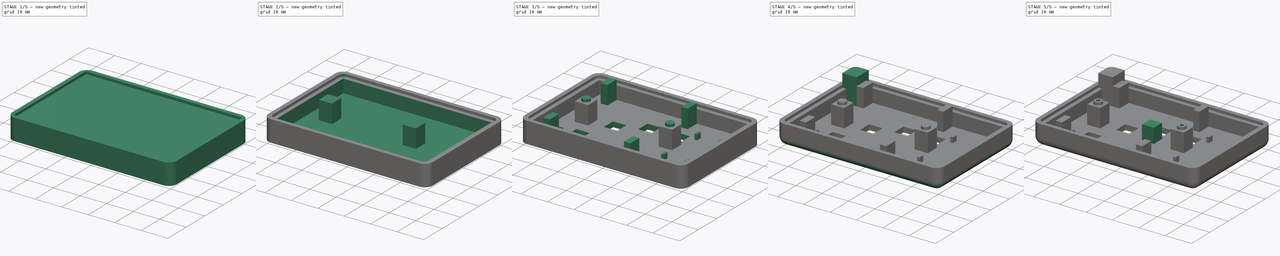
[diagram: build sequence overview — one tinted view per stage of 5, left to right]
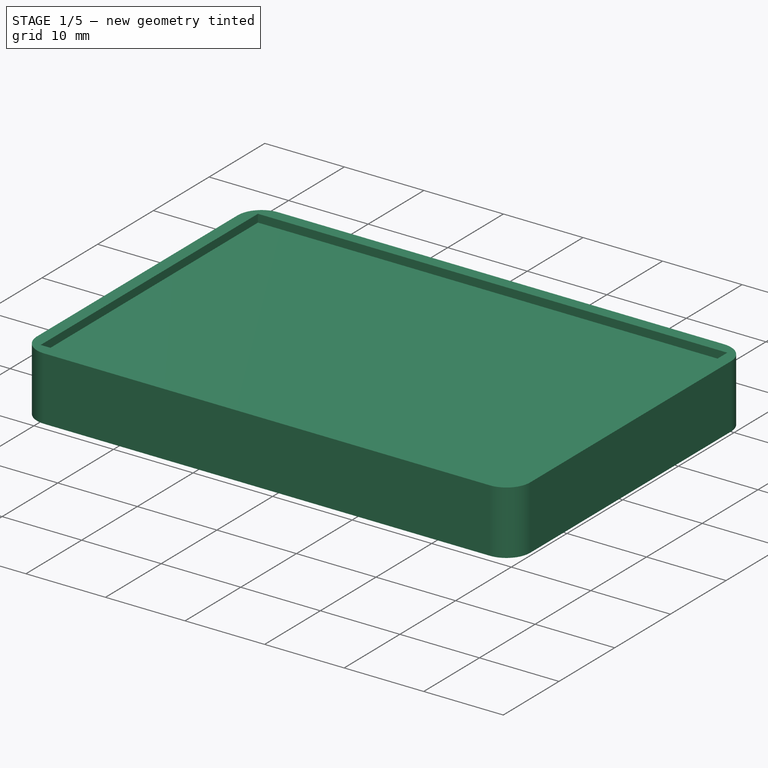
[diagram: stage 1 of 5 — iso view after this stage's code; geometry added in this stage tinted green]
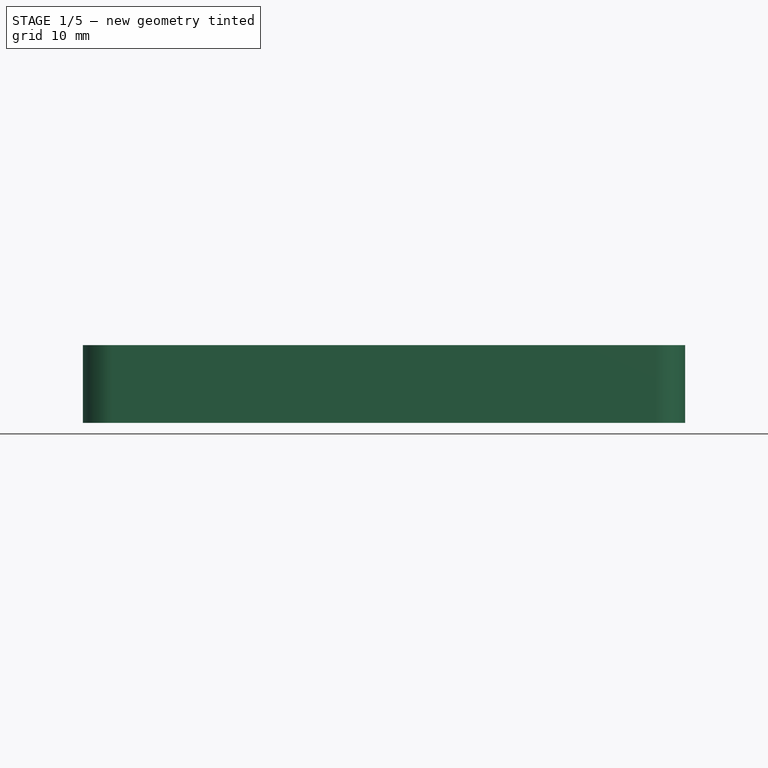
[diagram: stage 1 of 5 — front view after this stage's code; geometry added in this stage tinted green]
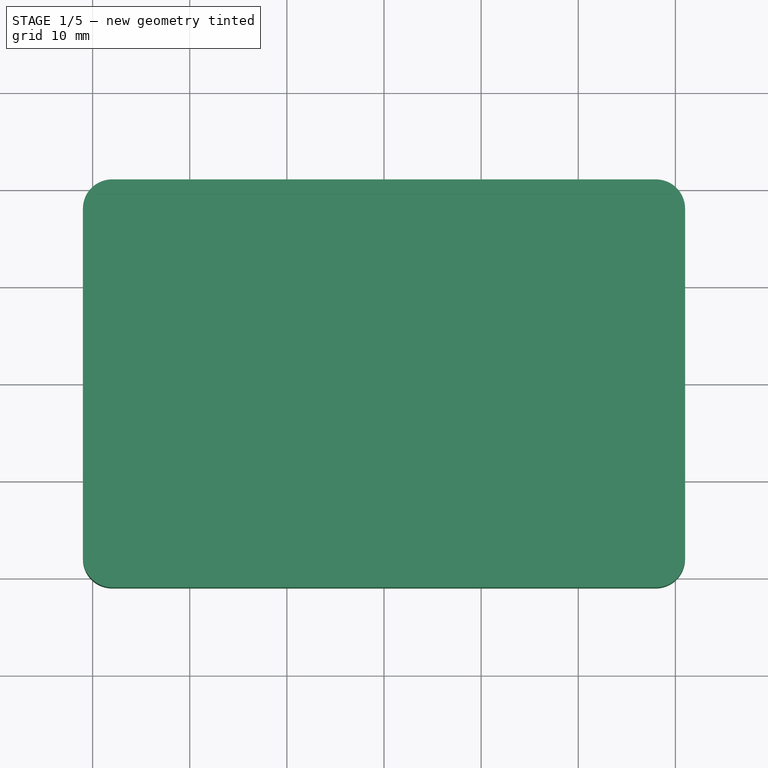
[diagram: stage 1 of 5 — top view after this stage's code; geometry added in this stage tinted green]
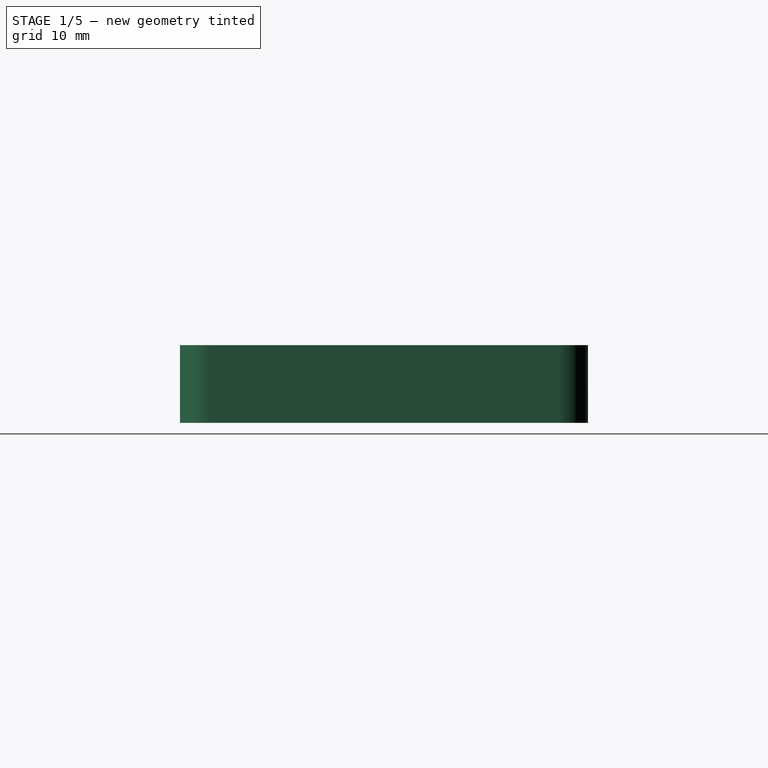
[diagram: stage 1 of 5 — right view after this stage's code; geometry added in this stage tinted green]
FCSTD DOCUMENT  (FreeCAD 0.21R33668 +26 (Git))
Label: pult02
License: All rights reserved
LicenseURL: http://en.wikipedia.org/wiki/All_rights_reserved
objects: Sketcher::SketchObject×11, PartDesign::Pad×8, PartDesign::Fillet×4, PartDesign::Pocket×3, PartDesign::Body×2, PartDesign::Hole×1
note: 45 computed .brp shape members not serialized (recipe doc carries the construction recipe); baked Part::Feature solids carry a one-line shape summary decoded from their .brp

FEATURE [Sketcher::SketchObject] Sketch
  FullyConstrained = true
  MapMode = 5
  Support = -> [XY_Plane]
  sketch-geometry (5):
    g0: LineSegment StartX=-31 StartY=21 StartZ=0 EndX=-31 EndY=-21 EndZ=0
    g1: LineSegment StartX=-31 StartY=-21 StartZ=0 EndX=31 EndY=-21 EndZ=0
    g2: LineSegment StartX=31 StartY=-21 StartZ=0 EndX=31 EndY=21 EndZ=0
    g3: LineSegment StartX=31 StartY=21 StartZ=0 EndX=-31 EndY=21 EndZ=0
    g4: GeomPoint X=0 Y=0 Z=0
  constraints (12):
    c: Coincident(g0,g1)
    c: Coincident(g1,g2)
    c: Coincident(g2,g3)
    c: Coincident(g3,g0)
    c: Horizontal(g1)
    c: Horizontal(g3)
    c: Vertical(g0)
    c: Vertical(g2)
    c: Symmetric(g1,g0,g4)
    c: Coincident(g4,g-1)
    c: DistanceY(g2,g2) = 42
    c: DistanceX(g3,g3) = 62
FEATURE [PartDesign::Pad] Pad
  Direction = (0,0,1)
  Length = 8
  Length2 = 10
  Profile = -> Sketch
  ReferenceAxis = -> Sketch [N_Axis]
  Type = 0
FEATURE [PartDesign::Fillet] Fillet
  Base = -> Pad [Edge5,Edge8,Edge1,Edge2]
  BaseFeature = -> Pad
  Radius = 3
  SupportTransform = false
  UseAllEdges = false
FEATURE [Sketcher::SketchObject] Sketch001
  FullyConstrained = true
  MapMode = 5
  Placement = pos=(0,0,8) rot=(0,0,1;0rad)
  Support = -> [Fillet]
  sketch-geometry (5):
    g0: LineSegment StartX=-29.5 StartY=19.5 StartZ=0 EndX=-29.5 EndY=-19.5 EndZ=0
    g1: LineSegment StartX=-29.5 StartY=-19.5 StartZ=0 EndX=29.5 EndY=-19.5 EndZ=0
    g2: LineSegment StartX=29.5 StartY=-19.5 StartZ=0 EndX=29.5 EndY=19.5 EndZ=0
    g3: LineSegment StartX=29.5 StartY=19.5 StartZ=0 EndX=-29.5 EndY=19.5 EndZ=0
    g4: GeomPoint X=0 Y=0 Z=0
  constraints (12):
    c: Coincident(g0,g1)
    c: Coincident(g1,g2)
    c: Coincident(g2,g3)
    c: Coincident(g3,g0)
    c: Horizontal(g1)
    c: Horizontal(g3)
    c: Vertical(g0)
    c: Vertical(g2)
    c: Symmetric(g1,g0,g4)
    c: Coincident(g4,g-1)
    c: DistanceX(g3,g3) = 59
    c: DistanceY(g2,g2) = 39
FEATURE [PartDesign::Pocket] Pocket
  BaseFeature = -> Fillet
  Direction = (0,0,-1)
  Length = 1
  Length2 = 5
  Profile = -> Sketch001
  ReferenceAxis = -> Sketch001 [N_Axis]
  Type = 0
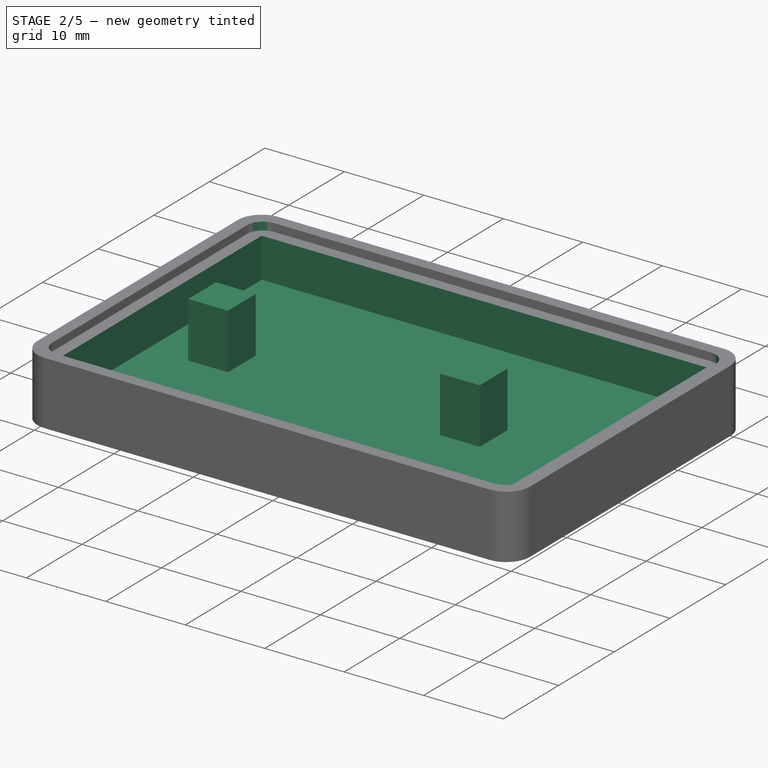
[diagram: stage 2 of 5 — iso view after this stage's code; geometry added in this stage tinted green]
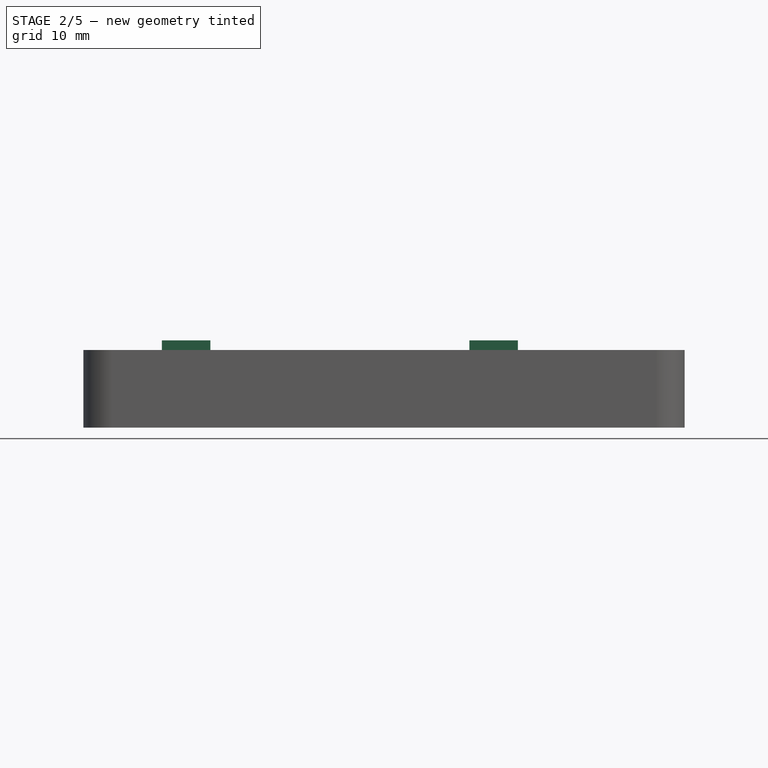
[diagram: stage 2 of 5 — front view after this stage's code; geometry added in this stage tinted green]
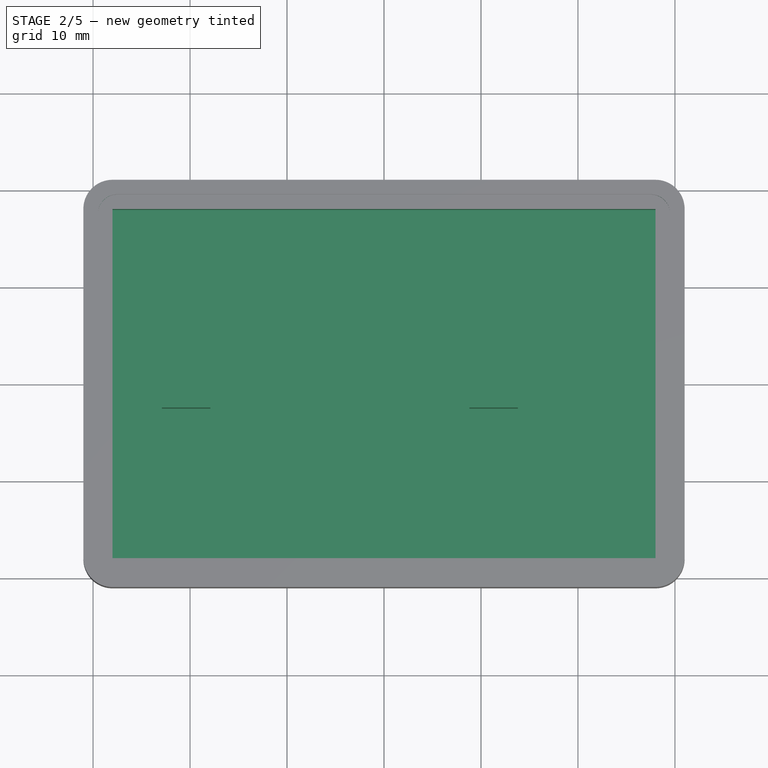
[diagram: stage 2 of 5 — top view after this stage's code; geometry added in this stage tinted green]
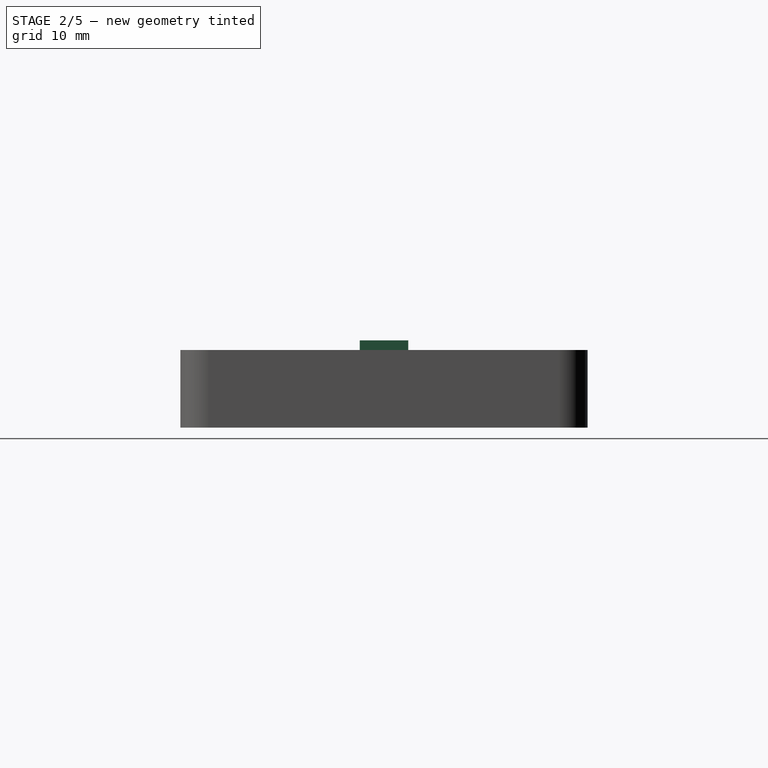
[diagram: stage 2 of 5 — right view after this stage's code; geometry added in this stage tinted green]
FEATURE [PartDesign::Fillet] Fillet001
  Base = -> Pocket [Edge34,Edge29,Edge30,Edge32]
  BaseFeature = -> Pocket
  Radius = 2
  SupportTransform = false
  UseAllEdges = false
FEATURE [Sketcher::SketchObject] Sketch002  label="uglublenie"
  FullyConstrained = true
  MapMode = 5
  Placement = pos=(0,0,7) rot=(0,0,1;0rad)
  Support = -> [Fillet001]
  sketch-geometry (5):
    g0: LineSegment StartX=-28 StartY=18 StartZ=0 EndX=-28 EndY=-18 EndZ=0
    g1: LineSegment StartX=-28 StartY=-18 StartZ=0 EndX=28 EndY=-18 EndZ=0
    g2: LineSegment StartX=28 StartY=-18 StartZ=0 EndX=28 EndY=18 EndZ=0
    g3: LineSegment StartX=28 StartY=18 StartZ=0 EndX=-28 EndY=18 EndZ=0
    g4: GeomPoint X=0 Y=0 Z=0
  constraints (12):
    c: Coincident(g0,g1)
    c: Coincident(g1,g2)
    c: Coincident(g2,g3)
    c: Coincident(g3,g0)
    c: Horizontal(g1)
    c: Horizontal(g3)
    c: Vertical(g0)
    c: Vertical(g2)
    c: Symmetric(g1,g0,g4)
    c: Coincident(g4,g-1)
    c: DistanceX(g3,g3) = 56
    c: DistanceY(g2,g2) = 36
FEATURE [PartDesign::Pocket] Pocket001
  BaseFeature = -> Fillet001
  Direction = (0,0,-1)
  Length = 5
  Length2 = 5
  Profile = -> Sketch002
  ReferenceAxis = -> Sketch002 [N_Axis]
  Type = 0
FEATURE [Sketcher::SketchObject] Sketch003  label="main stoyka for plate"
  FullyConstrained = true
  MapMode = 5
  Placement = pos=(0,0,2) rot=(0,0,1;0rad)
  Support = -> [Pocket001]
  sketch-geometry (10):
    g0: LineSegment StartX=-22.9 StartY=2.5 StartZ=0 EndX=-22.9 EndY=-2.5 EndZ=0
    g1: LineSegment StartX=-22.9 StartY=-2.5 StartZ=0 EndX=-17.9 EndY=-2.5 EndZ=0
    g2: LineSegment StartX=-17.9 StartY=-2.5 StartZ=0 EndX=-17.9 EndY=2.5 EndZ=0
    g3: LineSegment StartX=-17.9 StartY=2.5 StartZ=0 EndX=-22.9 EndY=2.5 EndZ=0
    g4: GeomPoint X=-20.4 Y=0 Z=0
    g5: LineSegment StartX=8.8 StartY=2.5 StartZ=0 EndX=8.8 EndY=-2.5 EndZ=0
    g6: LineSegment StartX=8.8 StartY=-2.5 StartZ=0 EndX=13.8 EndY=-2.5 EndZ=0
    g7: LineSegment StartX=13.8 StartY=-2.5 StartZ=0 EndX=13.8 EndY=2.5 EndZ=0
    g8: LineSegment StartX=13.8 StartY=2.5 StartZ=0 EndX=8.8 EndY=2.5 EndZ=0
    g9: GeomPoint X=11.3 Y=0 Z=0
  constraints (26):
    c: Coincident(g0,g1)
    c: Coincident(g1,g2)
    c: Coincident(g2,g3)
    c: Coincident(g3,g0)
    c: Horizontal(g1)
    c: Horizontal(g3)
    c: Vertical(g0)
    c: Vertical(g2)
    c: Symmetric(g1,g0,g4)
    c: PointOnObject(g4,g-1)
    c: DistanceX(g3,g3) = 5
    c: Equal(g3,g2)
    c: Coincident(g5,g6)
    c: Coincident(g6,g7)
    c: Coincident(g7,g8)
    c: Coincident(g8,g5)
    c: Horizontal(g6)
    c: Horizontal(g8)
    c: Vertical(g5)
    c: Vertical(g7)
    c: Symmetric(g6,g5,g9)
    c: PointOnObject(g9,g-1)
    c: DistanceX(g8,g8) = 5
    c: DistanceY(g7,g7) = 5
    c: DistanceX(g4,g9) = 31.7
    c: DistanceX(g4,g-1) = 20.4
FEATURE [PartDesign::Pad] Pad001
  BaseFeature = -> Pocket001
  Direction = (0,0,1)
  Length = 7
  Length2 = 10
  Profile = -> Sketch003
  ReferenceAxis = -> Sketch003 [N_Axis]
  Type = 0
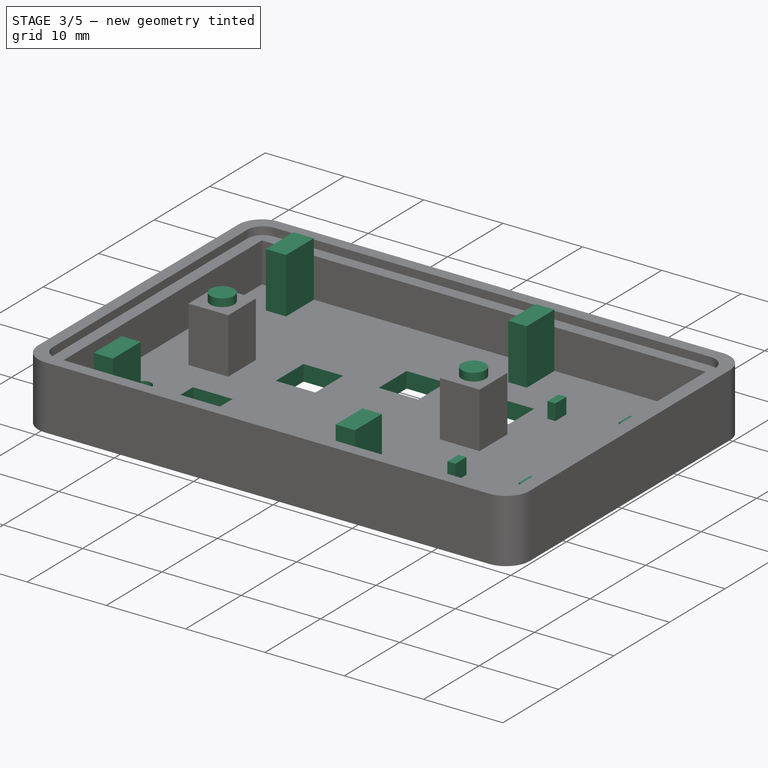
[diagram: stage 3 of 5 — iso view after this stage's code; geometry added in this stage tinted green]
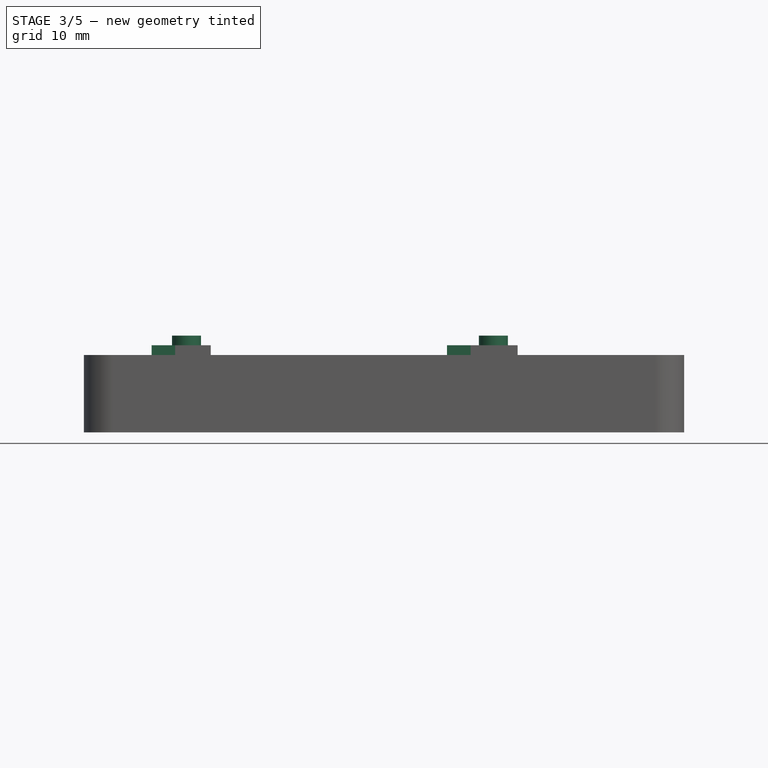
[diagram: stage 3 of 5 — front view after this stage's code; geometry added in this stage tinted green]
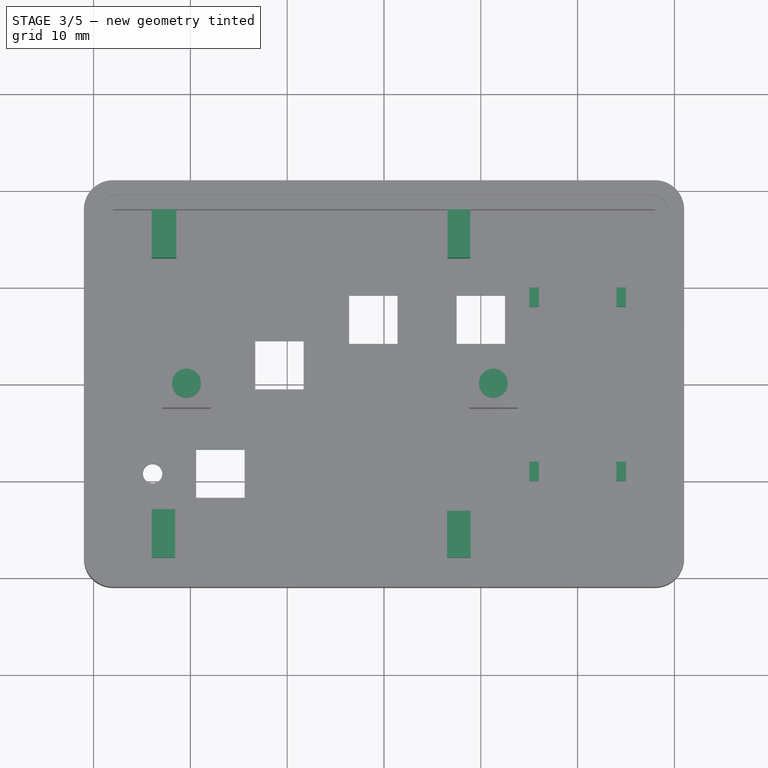
[diagram: stage 3 of 5 — top view after this stage's code; geometry added in this stage tinted green]
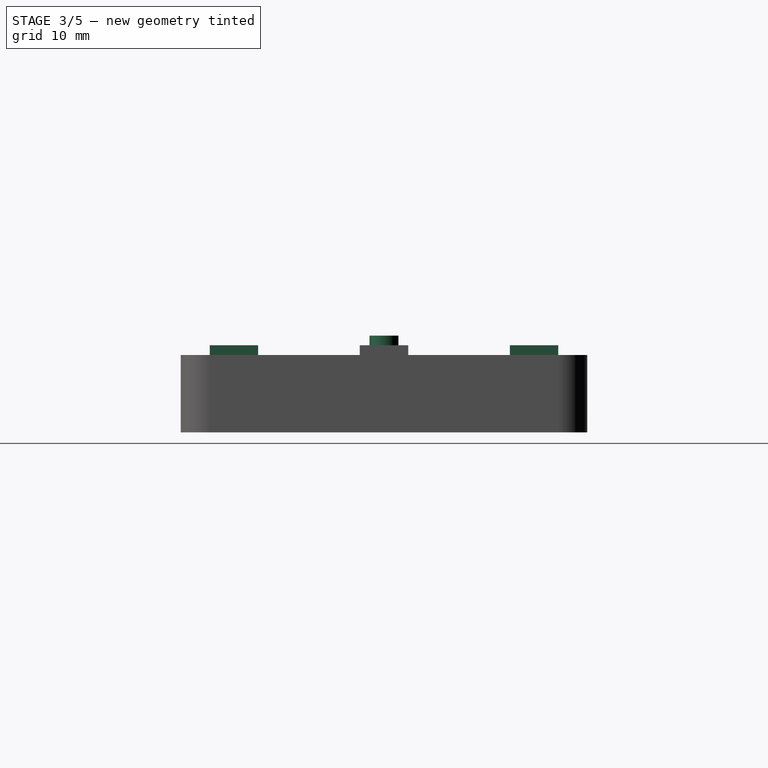
[diagram: stage 3 of 5 — right view after this stage's code; geometry added in this stage tinted green]
FEATURE [Sketcher::SketchObject] Sketch004  label="otv for plate"
  FullyConstrained = true
  MapMode = 5
  Placement = pos=(0,0,9) rot=(0,0,1;0rad)
  Support = -> [Pad001]
  sketch-geometry (2):
    g0: Circle CenterX=11.3 CenterY=0 CenterZ=0 NormalX=0 NormalY=0 NormalZ=1 AngleXU=0 Radius=1.5
    g1: Circle CenterX=-20.4 CenterY=0 CenterZ=0 NormalX=0 NormalY=0 NormalZ=1 AngleXU=0 Radius=1.5
  constraints (6):
    c: PointOnObject(g0,g-1)
    c: PointOnObject(g1,g-1)
    c: Diameter(g0) = 3
    c: Diameter(g1) = 3
    c: DistanceX(g1,g-1) = 20.4
    c: DistanceX(g1,g0) = 31.7
FEATURE [PartDesign::Pad] Pad002
  BaseFeature = -> Pad001
  Direction = (0,0,1)
  Length = 1
  Length2 = 10
  Profile = -> Sketch004
  ReferenceAxis = -> Sketch004 [N_Axis]
  Type = 0
FEATURE [Sketcher::SketchObject] Sketch005  label="suport for battery"
  FullyConstrained = false
  MapMode = 5
  Placement = pos=(0,0,2) rot=(0,0,1;0rad)
  Support = -> [Pad002]
  sketch-geometry (20):
    g0: LineSegment StartX=15 StartY=10 StartZ=0 EndX=15 EndY=8 EndZ=0
    g1: LineSegment StartX=15 StartY=8 StartZ=0 EndX=16 EndY=8 EndZ=0
    g2: LineSegment StartX=25 StartY=8 StartZ=0 EndX=25 EndY=10 EndZ=0
    g3: LineSegment StartX=25 StartY=10 StartZ=0 EndX=24 EndY=10 EndZ=0
    g4: GeomPoint X=20 Y=9 Z=0
    g5: LineSegment StartX=15 StartY=-8 StartZ=0 EndX=15 EndY=-10 EndZ=0
    g6: LineSegment StartX=15 StartY=-10 StartZ=0 EndX=16 EndY=-10 EndZ=0
    g7: LineSegment StartX=25 StartY=-10 StartZ=0 EndX=25 EndY=-8 EndZ=0
    g8: LineSegment StartX=25 StartY=-8 StartZ=0 EndX=24 EndY=-8 EndZ=0
    g9: GeomPoint X=20 Y=-9 Z=0
    g10: LineSegment StartX=16 StartY=10 StartZ=0 EndX=16 EndY=8 EndZ=0
    g11: LineSegment StartX=24 StartY=8 StartZ=0 EndX=24 EndY=10 EndZ=0
    g12: GeomPoint X=20 Y=9 Z=0
    g13: LineSegment StartX=16 StartY=-8 StartZ=0 EndX=16 EndY=-10 EndZ=0
    g14: LineSegment StartX=24 StartY=-10 StartZ=0 EndX=24 EndY=-8 EndZ=0
    g15: GeomPoint X=20 Y=-9 Z=0
    g16: LineSegment StartX=16 StartY=-8 StartZ=0 EndX=15 EndY=-8 EndZ=0
    g17: LineSegment StartX=24 StartY=-10 StartZ=0 EndX=25 EndY=-10 EndZ=0
    g18: LineSegment StartX=16 StartY=10 StartZ=0 EndX=15 EndY=10 EndZ=0
    g19: LineSegment StartX=24 StartY=8 StartZ=0 EndX=25 EndY=8 EndZ=0
  constraints (42):
    c: Coincident(g0,g1)
    c: Coincident(g19,g2)
    c: Coincident(g2,g3)
    c: Coincident(g18,g0)
    c: Horizontal(g1)
    c: Horizontal(g3)
    c: Vertical(g0)
    c: Vertical(g2)
    c: Symmetric(g19,g0,g4)
    c: Coincident(g5,g6)
    c: Coincident(g17,g7)
    c: Coincident(g7,g8)
    c: Coincident(g16,g5)
    c: Horizontal(g6)
    c: Horizontal(g8)
    c: Vertical(g5)
    c: Vertical(g7)
    c: Symmetric(g17,g5,g9)
    c: DistanceX(g18,g3) = 10
    c: DistanceX(g16,g8) = 10
    c: DistanceX(g-1,g0) = 15
    c: DistanceX(g-1,g5) = 15
    c: DistanceY(g2,g2) = 2
    c: DistanceY(g7,g7) = 2
    c: DistanceY(g-1,g0) = 8
    c: DistanceY(g5,g-1) = 8
    c: Vertical(g10)
    c: Vertical(g11)
    c: Symmetric(g11,g10,g12)
    c: Coincident(g12,g4)
    c: Vertical(g13)
    c: Vertical(g14)
    c: Symmetric(g14,g13,g15)
    c: Coincident(g15,g9)
    c: DistanceX(g10,g11) = 8
    c: DistanceX(g13,g14) = 8
    c: PointOnObject(g8,g14)
    c: PointOnObject(g16,g13)
    c: PointOnObject(g6,g13)
    c: PointOnObject(g3,g11)
    c: PointOnObject(g18,g10)
    c: PointOnObject(g1,g10)
FEATURE [PartDesign::Pad] Pad003
  BaseFeature = -> Pad002
  Direction = (0,0,1)
  Length = 2
  Length2 = 10
  Profile = -> Sketch005
  ReferenceAxis = -> Sketch005 [N_Axis]
  Type = 0
FEATURE [Sketcher::SketchObject] Sketch006  label="stoyki_pod_platu"
  FullyConstrained = false
  MapMode = 5
  Placement = pos=(0,0,2) rot=(0,0,1;0rad)
  Support = -> [Pad003]
  sketch-geometry (16):
    g0: LineSegment StartX=-24 StartY=18 StartZ=0 EndX=-21.4497 EndY=18 EndZ=0
    g1: LineSegment StartX=-21.4497 StartY=18 StartZ=0 EndX=-21.4497 EndY=13 EndZ=0
    g2: LineSegment StartX=-21.4497 StartY=13 StartZ=0 EndX=-24 EndY=13 EndZ=0
    g3: LineSegment StartX=-24 StartY=13 StartZ=0 EndX=-24 EndY=18 EndZ=0
    g4: LineSegment StartX=-24 StartY=-18 StartZ=0 EndX=-21.5732 EndY=-18 EndZ=0
    g5: LineSegment StartX=-21.5732 StartY=-18 StartZ=0 EndX=-21.5732 EndY=-13 EndZ=0
    g6: LineSegment StartX=-21.5732 StartY=-13 StartZ=0 EndX=-24 EndY=-13 EndZ=0
    g7: LineSegment StartX=-24 StartY=-13 StartZ=0 EndX=-24 EndY=-18 EndZ=0
    g8: LineSegment StartX=6.56363 StartY=17.9782 StartZ=0 EndX=8.90269 EndY=17.9782 EndZ=0
    g9: LineSegment StartX=8.90269 StartY=17.9782 StartZ=0 EndX=8.90269 EndY=13 EndZ=0
    g10: LineSegment StartX=8.90269 StartY=13 StartZ=0 EndX=6.56363 EndY=13 EndZ=0
    g11: LineSegment StartX=6.56363 StartY=13 StartZ=0 EndX=6.56363 EndY=17.9782 EndZ=0
    g12: LineSegment StartX=8.94237 StartY=-18 StartZ=0 EndX=6.50772 EndY=-18 EndZ=0
    g13: LineSegment StartX=6.50772 StartY=-18 StartZ=0 EndX=6.50772 EndY=-13.1605 EndZ=0
    g14: LineSegment StartX=6.50772 StartY=-13.1605 StartZ=0 EndX=8.94237 EndY=-13.1605 EndZ=0
    g15: LineSegment StartX=8.94237 StartY=-13.1605 StartZ=0 EndX=8.94237 EndY=-18 EndZ=0
  constraints (32):
    c: Coincident(g0,g1)
    c: Coincident(g1,g2)
    c: Coincident(g2,g3)
    c: Coincident(g3,g0)
    c: Horizontal(g0)
    c: Horizontal(g2)
    c: Vertical(g1)
    c: Vertical(g3)
    c: Coincident(g4,g5)
    c: Coincident(g5,g6)
    c: Coincident(g6,g7)
    c: Coincident(g7,g4)
    c: Horizontal(g4)
    c: Horizontal(g6)
    c: Vertical(g5)
    c: Vertical(g7)
    c: Coincident(g8,g9)
    c: Coincident(g9,g10)
    c: Coincident(g10,g11)
    c: Coincident(g11,g8)
    c: Horizontal(g8)
    c: Horizontal(g10)
    c: Vertical(g9)
    c: Vertical(g11)
    c: Coincident(g12,g13)
    c: Coincident(g13,g14)
    c: Coincident(g14,g15)
    c: Coincident(g15,g12)
    c: Horizontal(g12)
    c: Horizontal(g14)
    c: Vertical(g13)
    c: Vertical(g15)
FEATURE [PartDesign::Pad] Pad004
  BaseFeature = -> Pad003
  Direction = (0,0,1)
  Length = 7
  Length2 = 10
  Profile = -> Sketch006
  ReferenceAxis = -> Sketch006 [N_Axis]
  Type = 0
FEATURE [Sketcher::SketchObject] Sketch007  label="otv for button"
  FullyConstrained = false
  MapMode = 5
  Placement = pos=(0,0,2) rot=(0,0,1;0rad)
  Support = -> [Pad004]
  sketch-geometry (22):
    g0: Circle CenterX=-23.9 CenterY=-9.2 CenterZ=0 NormalX=0 NormalY=0 NormalZ=1 AngleXU=0 Radius=1
    g1: LineSegment StartX=-19.4 StartY=-6.7 StartZ=0 EndX=-19.4 EndY=-11.7 EndZ=0
    g2: LineSegment StartX=-19.4 StartY=-11.7 StartZ=0 EndX=-14.4 EndY=-11.7 EndZ=0
    g3: LineSegment StartX=-14.4 StartY=-11.7 StartZ=0 EndX=-14.4 EndY=-6.7 EndZ=0
    g4: LineSegment StartX=-14.4 StartY=-6.7 StartZ=0 EndX=-19.4 EndY=-6.7 EndZ=0
    g5: GeomPoint X=-16.9 Y=-9.2 Z=0
    g6: GeomPoint X=-10.8 Y=2 Z=0
    g7: LineSegment StartX=-3.6 StartY=9.2 StartZ=0 EndX=-3.6 EndY=4.2 EndZ=0
    g8: LineSegment StartX=-3.6 StartY=4.2 StartZ=0 EndX=1.4 EndY=4.2 EndZ=0
    g9: LineSegment StartX=1.4 StartY=4.2 StartZ=0 EndX=1.4 EndY=9.2 EndZ=0
    g10: LineSegment StartX=1.4 StartY=9.2 StartZ=0 EndX=-3.6 EndY=9.2 EndZ=0
    g11: GeomPoint X=-1.1 Y=6.7 Z=0
    g12: LineSegment StartX=7.5 StartY=9.2 StartZ=0 EndX=7.5 EndY=4.2 EndZ=0
    g13: LineSegment StartX=7.5 StartY=4.2 StartZ=0 EndX=12.5 EndY=4.2 EndZ=0
    g14: LineSegment StartX=12.5 StartY=4.2 StartZ=0 EndX=12.5 EndY=9.2 EndZ=0
    g15: LineSegment StartX=12.5 StartY=9.2 StartZ=0 EndX=7.5 EndY=9.2 EndZ=0
    g16: GeomPoint X=10 Y=6.7 Z=0
    g17: LineSegment StartX=-13.3 StartY=4.5 StartZ=0 EndX=-13.3 EndY=-0.5 EndZ=0
    g18: LineSegment StartX=-13.3 StartY=-0.5 StartZ=0 EndX=-8.3 EndY=-0.5 EndZ=0
    g19: LineSegment StartX=-8.3 StartY=-0.5 StartZ=0 EndX=-8.3 EndY=4.5 EndZ=0
    g20: LineSegment StartX=-8.3 StartY=4.5 StartZ=0 EndX=-13.3 EndY=4.5 EndZ=0
    g21: GeomPoint X=-10.8 Y=2 Z=0
  constraints (46):
    c: Diameter(g0) = 2
    c: DistanceX(g0,g-1) = 23.9
    c: Distance(g0,g-1) = 9.2
    c: Coincident(g1,g2)
    c: Coincident(g2,g3)
    c: Coincident(g3,g4)
    c: Coincident(g4,g1)
    c: Horizontal(g2)
    c: Horizontal(g4)
    c: Vertical(g1)
    c: Vertical(g3)
    c: Symmetric(g2,g1,g5)
    c: Coincident(g7,g8)
    c: Coincident(g8,g9)
    c: Coincident(g9,g10)
    c: Coincident(g10,g7)
    c: Horizontal(g8)
    c: Horizontal(g10)
    c: Vertical(g7)
    c: Vertical(g9)
    c: Symmetric(g8,g7,g11)
    c: Coincident(g12,g13)
    c: Coincident(g13,g14)
    c: Coincident(g14,g15)
    c: Coincident(g15,g12)
    c: Horizontal(g13)
    c: Horizontal(g15)
    c: Vertical(g12)
    c: Vertical(g14)
    c: Symmetric(g13,g12,g16)
    c: DistanceX(g15,g15) = 5
    c: DistanceX(g10,g10) = 5
    c: DistanceX(g4,g4) = 5
    c: DistanceY(g9,g9) = 5
    c: DistanceY(g3,g3) = 5
    c: Coincident(g17,g18)
    c: Coincident(g18,g19)
    c: Coincident(g19,g20)
    c: Coincident(g20,g17)
    c: Horizontal(g18)
    c: Horizontal(g20)
    c: Vertical(g17)
    c: Vertical(g19)
    c: Symmetric(g18,g17,g21)
    c: DistanceY(g19,g19) = 5
    c: DistanceX(g20,g20) = 5
FEATURE [PartDesign::Pocket] Pocket002
  BaseFeature = -> Pad004
  Direction = (0,0,-1)
  Length = 2
  Length2 = 5
  Profile = -> Sketch007
  ReferenceAxis = -> Sketch007 [N_Axis]
  Type = 0
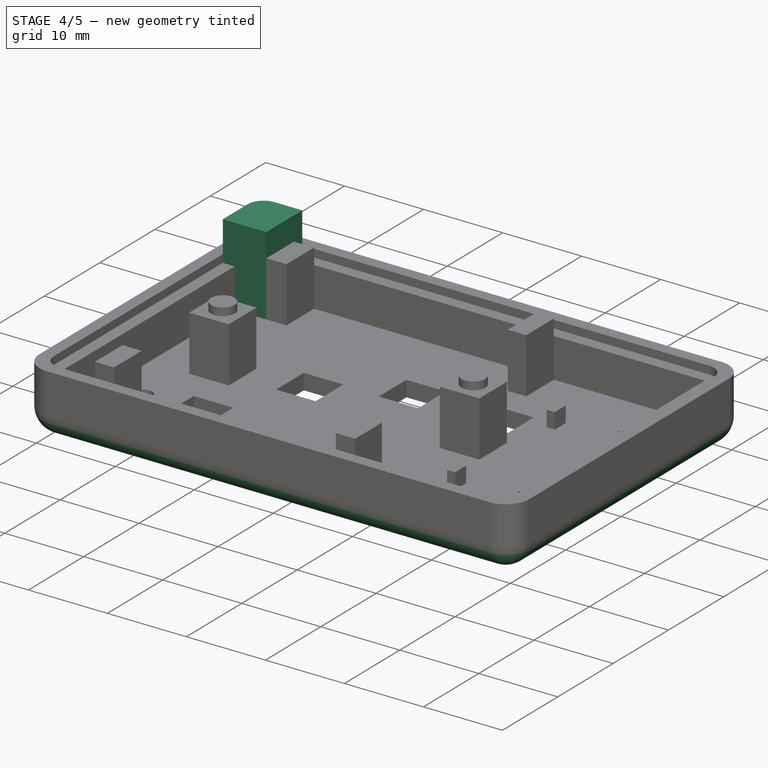
[diagram: stage 4 of 5 — iso view after this stage's code; geometry added in this stage tinted green]
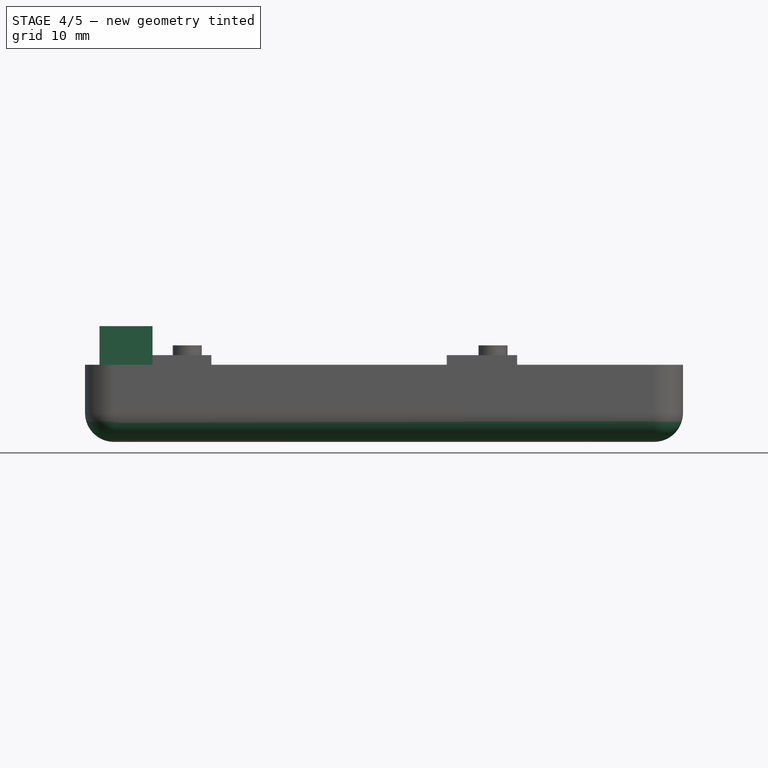
[diagram: stage 4 of 5 — front view after this stage's code; geometry added in this stage tinted green]
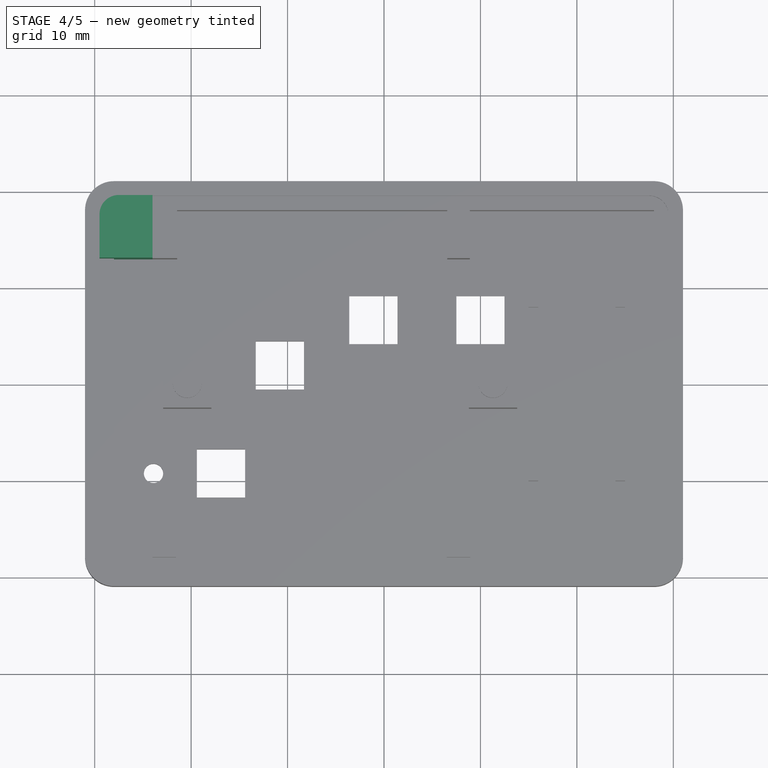
[diagram: stage 4 of 5 — top view after this stage's code; geometry added in this stage tinted green]
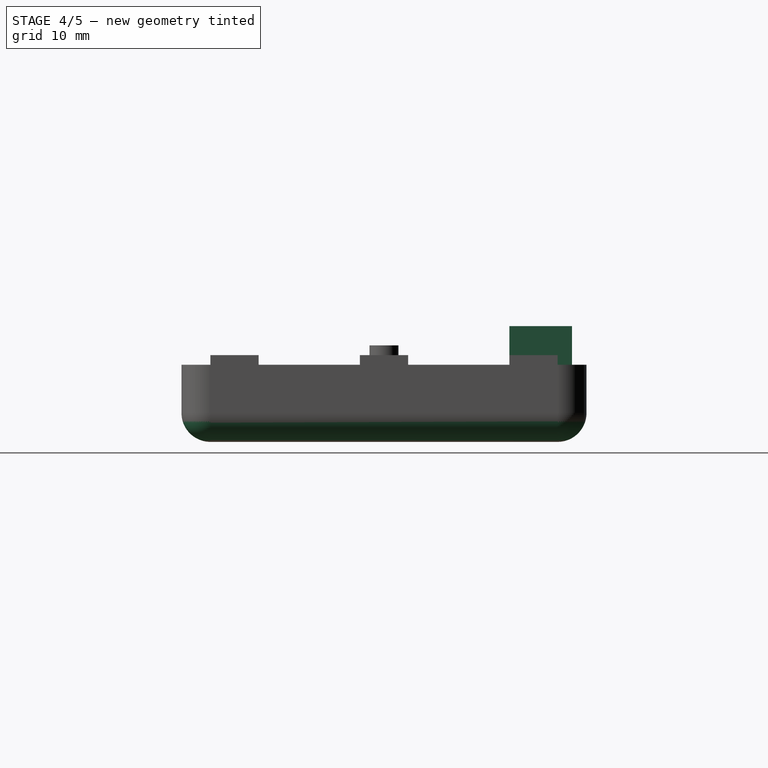
[diagram: stage 4 of 5 — right view after this stage's code; geometry added in this stage tinted green]
FEATURE [PartDesign::Fillet] Fillet002
  Base = -> Pocket002 [Edge40,Edge48,Edge42,Edge33]
  BaseFeature = -> Pocket002
  Radius = 3
  SupportTransform = false
  UseAllEdges = false
FEATURE [Sketcher::SketchObject] Sketch008
  FullyConstrained = false
  MapMode = 5
  Placement = pos=(0,0,2) rot=(0,0,1;0rad)
  Support = -> [Fillet002]
  sketch-geometry (4):
    g0: LineSegment StartX=-24 StartY=13 StartZ=0 EndX=-29.5 EndY=13 EndZ=0
    g1: LineSegment StartX=-29.5 StartY=13 StartZ=0 EndX=-29.5 EndY=19.5 EndZ=0
    g2: LineSegment StartX=-29.5 StartY=19.5 StartZ=0 EndX=-24 EndY=19.5 EndZ=0
    g3: LineSegment StartX=-24 StartY=19.5 StartZ=0 EndX=-24 EndY=13 EndZ=0
  constraints (10):
    c: Coincident(g0,g1)
    c: Coincident(g1,g2)
    c: Coincident(g2,g3)
    c: Coincident(g3,g0)
    c: Horizontal(g0)
    c: Horizontal(g2)
    c: Vertical(g1)
    c: Vertical(g3)
    c: DistanceX(g0,g0) = 5.5
    c: DistanceY(g3,g3) = 6.5
FEATURE [PartDesign::Pad] Pad005
  BaseFeature = -> Fillet002
  Direction = (0,0,1)
  Length = 10
  Length2 = 10
  Profile = -> Sketch008
  ReferenceAxis = -> Sketch008 [N_Axis]
  Type = 0
FEATURE [PartDesign::Fillet] Fillet003
  Base = -> Pad005 [Edge79]
  BaseFeature = -> Pad005
  Radius = 2
  SupportTransform = false
  UseAllEdges = false
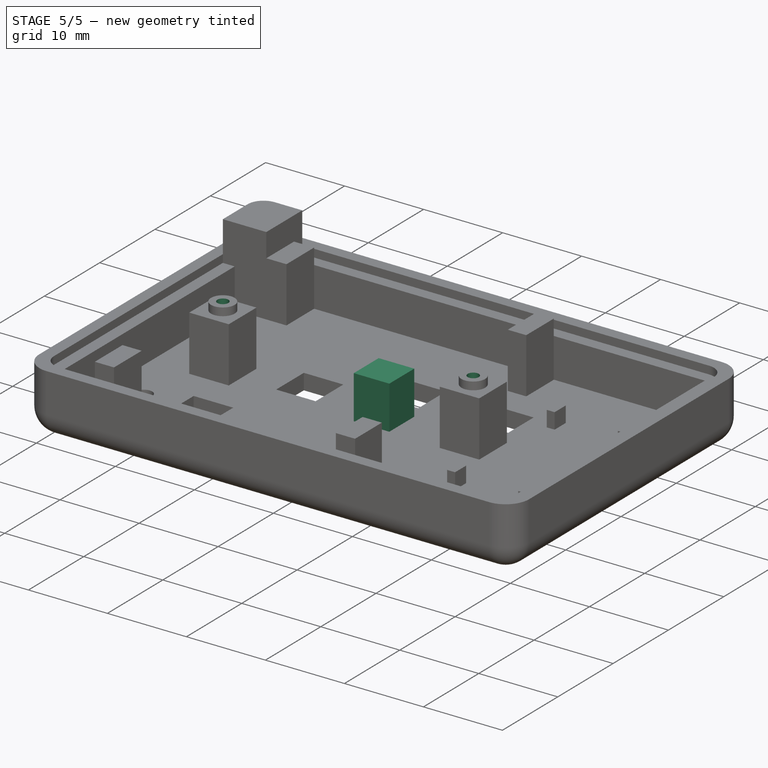
[diagram: stage 5 of 5 — iso view after this stage's code; geometry added in this stage tinted green]
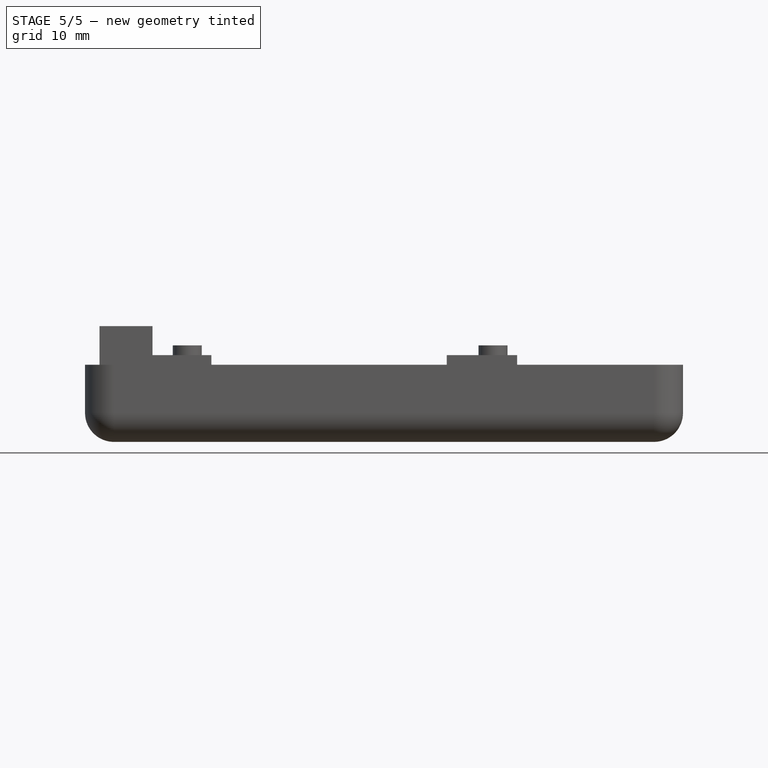
[diagram: stage 5 of 5 — front view after this stage's code; geometry added in this stage tinted green]
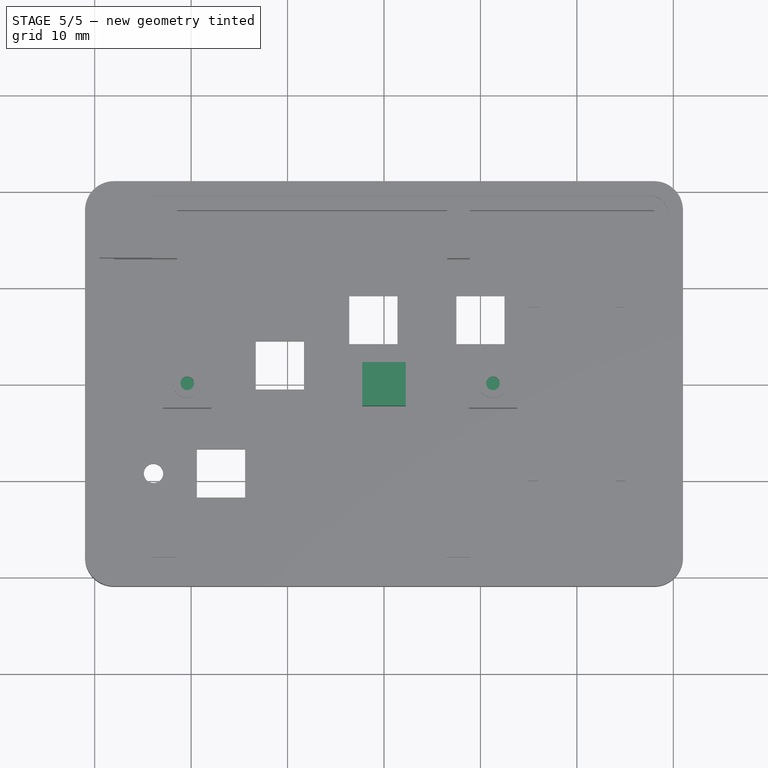
[diagram: stage 5 of 5 — top view after this stage's code; geometry added in this stage tinted green]
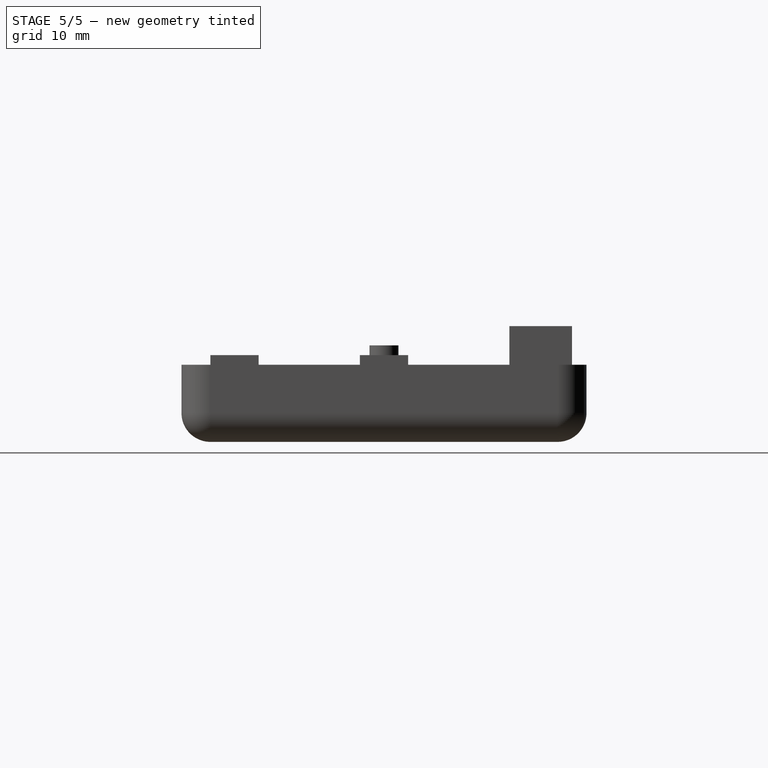
[diagram: stage 5 of 5 — right view after this stage's code; geometry added in this stage tinted green]
FEATURE [Sketcher::SketchObject] Sketch009
  FullyConstrained = true
  MapMode = 5
  Support = -> [XY_Plane001]
  sketch-geometry (5):
    g0: LineSegment StartX=-2.75 StartY=2.75 StartZ=0 EndX=-2.75 EndY=-2.75 EndZ=0
    g1: LineSegment StartX=-2.75 StartY=-2.75 StartZ=0 EndX=2.75 EndY=-2.75 EndZ=0
    g2: LineSegment StartX=2.75 StartY=-2.75 StartZ=0 EndX=2.75 EndY=2.75 EndZ=0
    g3: LineSegment StartX=2.75 StartY=2.75 StartZ=0 EndX=-2.75 EndY=2.75 EndZ=0
    g4: GeomPoint X=2e-16 Y=-1.6e-15 Z=0
  constraints (12):
    c: Coincident(g0,g1)
    c: Coincident(g1,g2)
    c: Coincident(g2,g3)
    c: Coincident(g3,g0)
    c: Horizontal(g1)
    c: Horizontal(g3)
    c: Vertical(g0)
    c: Vertical(g2)
    c: Symmetric(g1,g0,g4)
    c: Coincident(g4,g-1)
    c: Equal(g3,g2)
    c: DistanceX(g3,g3) = 5.5
FEATURE [PartDesign::Pad] Pad006
  Direction = (0,0,1)
  Length = 2
  Length2 = 10
  Profile = -> Sketch009
  ReferenceAxis = -> Sketch009 [N_Axis]
  Type = 0
FEATURE [Sketcher::SketchObject] Sketch010
  FullyConstrained = true
  MapMode = 5
  Placement = pos=(0,0,2) rot=(0,0,1;0rad)
  Support = -> [Pad006]
  sketch-geometry (5):
    g0: LineSegment StartX=-2.25 StartY=2.25 StartZ=0 EndX=-2.25 EndY=-2.25 EndZ=0
    g1: LineSegment StartX=-2.25 StartY=-2.25 StartZ=0 EndX=2.25 EndY=-2.25 EndZ=0
    g2: LineSegment StartX=2.25 StartY=-2.25 StartZ=0 EndX=2.25 EndY=2.25 EndZ=0
    g3: LineSegment StartX=2.25 StartY=2.25 StartZ=0 EndX=-2.25 EndY=2.25 EndZ=0
    g4: GeomPoint X=0 Y=0 Z=0
  constraints (12):
    c: Coincident(g0,g1)
    c: Coincident(g1,g2)
    c: Coincident(g2,g3)
    c: Coincident(g3,g0)
    c: Horizontal(g1)
    c: Horizontal(g3)
    c: Vertical(g0)
    c: Vertical(g2)
    c: Symmetric(g1,g0,g4)
    c: Coincident(g4,g-1)
    c: Equal(g3,g2)
    c: DistanceX(g3,g3) = 4.5
FEATURE [PartDesign::Pad] Pad007
  BaseFeature = -> Pad006
  Direction = (0,0,1)
  Length = 5.5
  Length2 = 10
  Profile = -> Sketch010
  ReferenceAxis = -> Sketch010 [N_Axis]
  Type = 0
FEATURE [PartDesign::Body] Body001  label="кнопка"
  Group = -> [Sketch009,Pad006,Sketch010,Pad007]
  Origin = -> Origin001
  Tip = -> Pad007
FEATURE [PartDesign::Hole] Hole
  BaseFeature = -> Fillet003
  CustomThreadClearance = 0
  Depth = 2
  DepthType = 0
  Diameter = 1.4
  DrillForDepth = false
  DrillPoint = 0
  DrillPointAngle = 118
  HoleCutCountersinkAngle = 90
  HoleCutCustomValues = false
  HoleCutDepth = 0
  HoleCutDiameter = 6.1
  HoleCutType = 0
  ModelThread = false
  Profile = -> Fillet003 [Face108,Face109]
  Tapered = false
  TaperedAngle = 90
  ThreadClass = 0
  ThreadDepth = 2
  ThreadDepthType = 0
  ThreadDirection = 0
  ThreadFit = 0
  ThreadSize = 0
  ThreadType = 0
  Threaded = false
  UseCustomThreadClearance = false
FEATURE [PartDesign::Body] Body  label="верхня кришка"
  Group = -> [Sketch,Pad,Fillet,Sketch001,Pocket,Fillet001,Sketch002,Pocket001,Sketch003,Pad001,Sketch004,Pad002,Sketch005,Pad003,Sketch006,Pad004,Sketch007,Pocket002,Fillet002,Sketch008,Pad005,Fillet003,Hole]
  Origin = -> Origin
  Tip = -> Hole
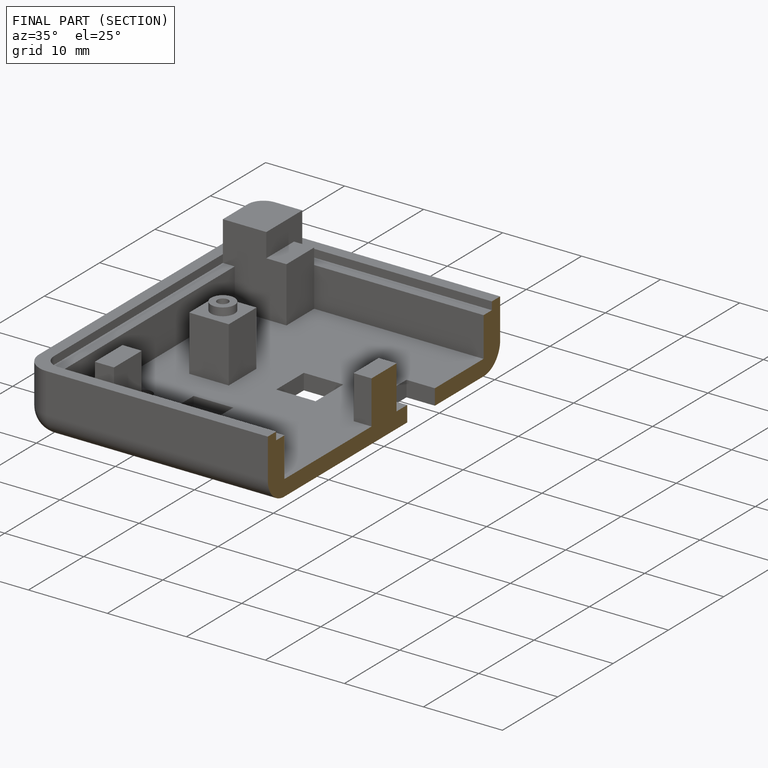
[diagram: finished part — half-section view (interior)]
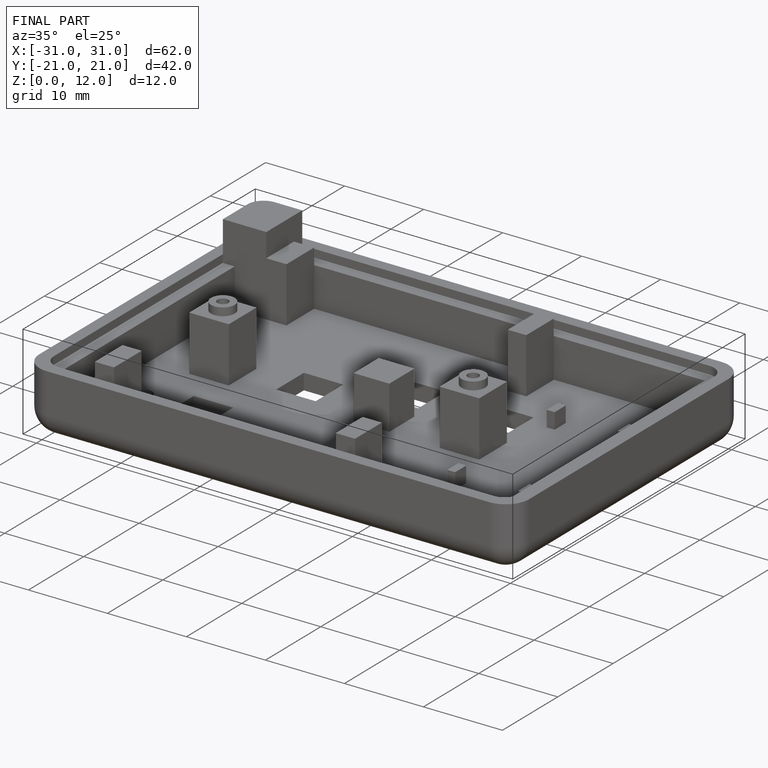
[diagram: finished part — iso view with bounding-box wireframe]
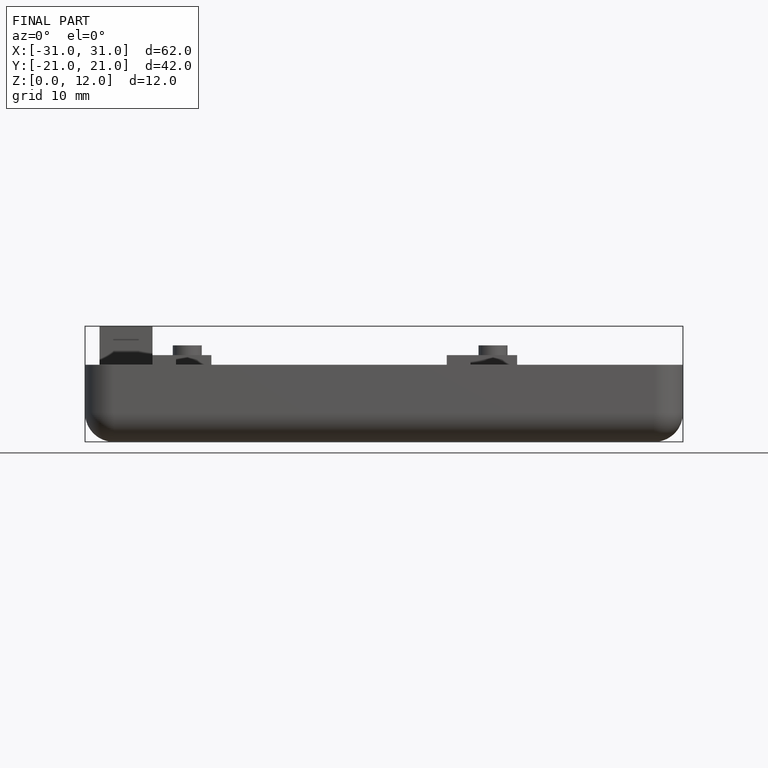
[diagram: finished part — front view with bounding-box wireframe]
